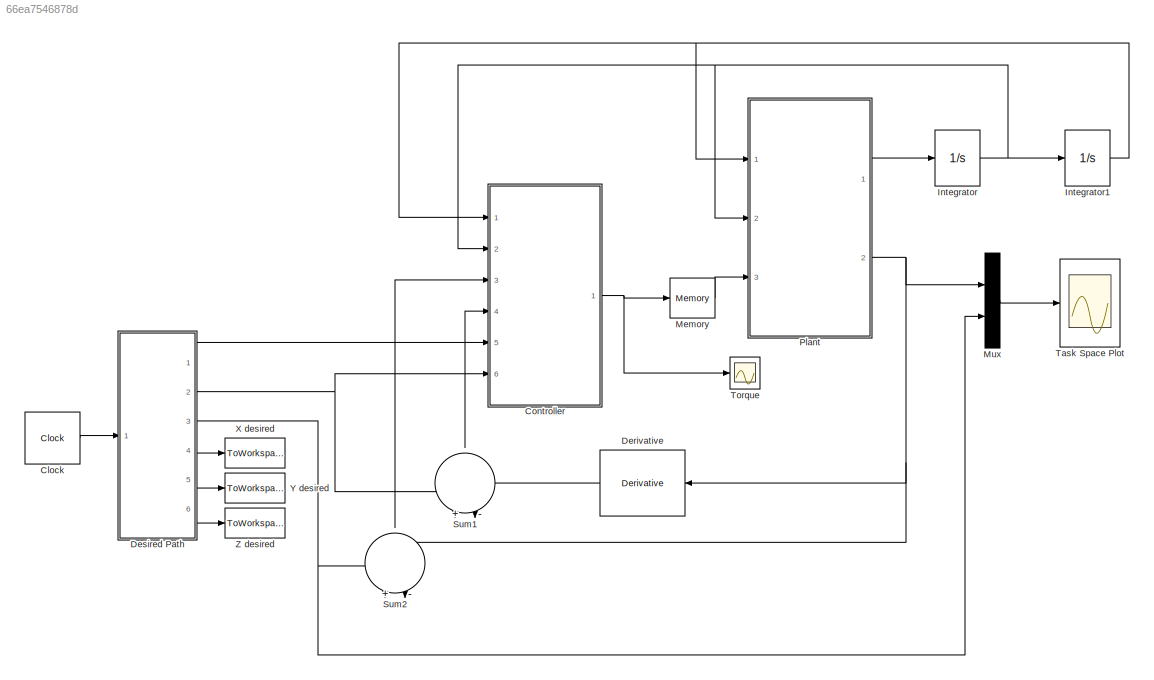
MODEL slx_66ea7546878d
KIND model
CONFIG AbsTol = auto
CONFIG FixedStep = auto
CONFIG MaxStep = 0.0001
CONFIG MinStep = auto
CONFIG RelTol = 1e-3
CONFIG SampleTimeConstraint = Unconstrained
CONFIG Solver = VariableStepAuto
CONFIG SolverMode = Auto
CONFIG SolverName = VariableStepAuto
CONFIG StartTime = 0.0
CONFIG StopTime = 20
BLOCK [Clock] Clock
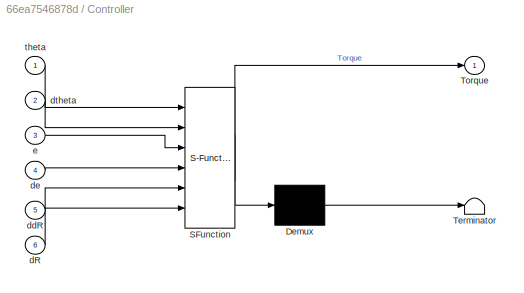
BLOCK [SubSystem] Controller
  ErrorFcn = Stateflow.Translate.translate
  PermitHierarchicalResolution = ExplicitOnly
  Ports = [6, 1]
  RequestExecContextInheritance = off
  SFBlockType = MATLAB Function
  TreatAsAtomicUnit = on
  Variant = off
BLOCK [Demux] Controller/ Demux 
  Outputs = 1
  Ports = [1, 1]
BLOCK [S-Function] Controller/ SFunction 
  EnableBusSupport = on
  FunctionName = sf_sfun
  PortCounts = [6 2]
  Ports = [6, 2]
  SFunctionDeploymentMode = off
  Tag = Stateflow S-Function Taskspace_3R_SMC 3
BLOCK [Terminator] Controller/ Terminator 
BLOCK [Outport] Controller/Torque
  IconDisplay = Port number
BLOCK [Inport] Controller/dR
  IconDisplay = Port number
  Port = 6
BLOCK [Inport] Controller/ddR
  IconDisplay = Port number
  Port = 5
BLOCK [Inport] Controller/de
  IconDisplay = Port number
  Port = 4
BLOCK [Inport] Controller/dtheta
  IconDisplay = Port number
  Port = 2
BLOCK [Inport] Controller/e
  IconDisplay = Port number
  Port = 3
BLOCK [Inport] Controller/theta
  IconDisplay = Port number
BLOCK [Derivative] Derivative
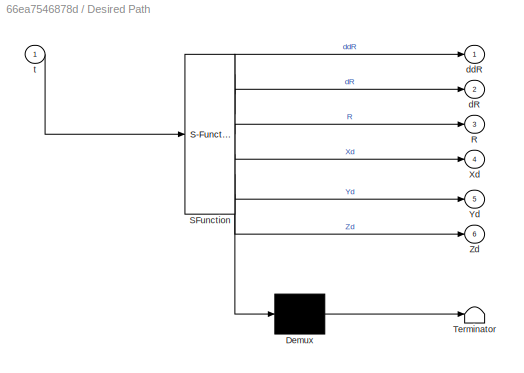
BLOCK [SubSystem] Desired Path
  ErrorFcn = Stateflow.Translate.translate
  PermitHierarchicalResolution = ExplicitOnly
  Ports = [1, 6]
  RequestExecContextInheritance = off
  SFBlockType = MATLAB Function
  TreatAsAtomicUnit = on
  Variant = off
BLOCK [Demux] Desired Path/ Demux 
  Outputs = 1
  Ports = [1, 1]
BLOCK [S-Function] Desired Path/ SFunction 
  EnableBusSupport = on
  FunctionName = sf_sfun
  PortCounts = [1 7]
  Ports = [1, 7]
  SFunctionDeploymentMode = off
  Tag = Stateflow S-Function Taskspace_3R_SMC 1
BLOCK [Terminator] Desired Path/ Terminator 
BLOCK [Outport] Desired Path/R
  IconDisplay = Port number
  Port = 3
BLOCK [Outport] Desired Path/Xd
  IconDisplay = Port number
  Port = 4
BLOCK [Outport] Desired Path/Yd
  IconDisplay = Port number
  Port = 5
BLOCK [Outport] Desired Path/Zd
  IconDisplay = Port number
  Port = 6
BLOCK [Outport] Desired Path/dR
  IconDisplay = Port number
  Port = 2
BLOCK [Outport] Desired Path/ddR
  IconDisplay = Port number
BLOCK [Inport] Desired Path/t
  IconDisplay = Port number
BLOCK [Integrator] Integrator
  InitialCondition = zeros(3,1)
  Ports = [1, 1]
BLOCK [Integrator] Integrator1
  InitialCondition = randn(3,1)
  Ports = [1, 1]
BLOCK [Memory] Memory
BLOCK [Mux] Mux
  DisplayOption = bar
  Inputs = 2
  Ports = [2, 1]
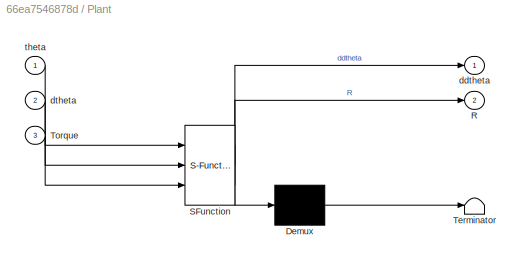
BLOCK [SubSystem] Plant
  ErrorFcn = Stateflow.Translate.translate
  PermitHierarchicalResolution = ExplicitOnly
  Ports = [3, 2]
  RequestExecContextInheritance = off
  SFBlockType = MATLAB Function
  TreatAsAtomicUnit = on
  Variant = off
BLOCK [Demux] Plant/ Demux 
  Outputs = 1
  Ports = [1, 1]
BLOCK [S-Function] Plant/ SFunction 
  EnableBusSupport = on
  FunctionName = sf_sfun
  PortCounts = [3 3]
  Ports = [3, 3]
  SFunctionDeploymentMode = off
  Tag = Stateflow S-Function Taskspace_3R_SMC 2
BLOCK [Terminator] Plant/ Terminator 
BLOCK [Outport] Plant/R
  IconDisplay = Port number
  Port = 2
BLOCK [Inport] Plant/Torque
  IconDisplay = Port number
  Port = 3
BLOCK [Outport] Plant/ddtheta
  IconDisplay = Port number
BLOCK [Inport] Plant/dtheta
  IconDisplay = Port number
  Port = 2
BLOCK [Inport] Plant/theta
  IconDisplay = Port number
BLOCK [Sum] Sum1
  IconShape = round
  InputSameDT = off
  Inputs = +|-
  OutDataTypeStr = Inherit: Inherit via internal rule
  Ports = [2, 1]
  SaturateOnIntegerOverflow = off
BLOCK [Sum] Sum2
  IconShape = round
  InputSameDT = off
  Inputs = +|-
  OutDataTypeStr = Inherit: Inherit via internal rule
  Ports = [2, 1]
  SaturateOnIntegerOverflow = off
BLOCK [Scope] Task Space Plot
  Ports = [1]
  ScopeSpecificationString = Simulink.scopes.TimeScopeBlockCfg('CurrentConfiguration', extmgr.ConfigurationSet(extmgr.Configuration('Core','General UI',true),extmgr.Configuration('Core','Source UI',true),extmgr.Configuration('Sources','WiredSimulink',true,'DataLoggingVariableName','ScopeData1'),extmgr.Configuration('Visuals','Time Domain',true,'SerializedDisplays',{struct('MinYLimReal','-4.16237','MaxYLimReal','7.12915','YLab...<+1449ch>
BLOCK [Scope] Torque
  Ports = [1]
  ScopeSpecificationString = Simulink.scopes.TimeScopeBlockCfg('CurrentConfiguration', extmgr.ConfigurationSet(extmgr.Configuration('Core','General UI',true),extmgr.Configuration('Core','Source UI',true),extmgr.Configuration('Sources','WiredSimulink',true,'DataLoggingVariableName','ScopeData1'),extmgr.Configuration('Visuals','Time Domain',true,'SerializedDisplays',{struct('MinYLimReal','-365.08925','MaxYLimReal','192.29034','...<+1441ch>
BLOCK [ToWorkspace] X desired
  FixptAsFi = on
  MaxDataPoints = inf
  Ports = [1]
  SampleTime = -1
  Save2DSignal = 3-D array (concatenate along third dimension)
  SaveFormat = Timeseries
  VariableName = Xd
BLOCK [ToWorkspace] Y desired 
  FixptAsFi = on
  MaxDataPoints = inf
  Ports = [1]
  SampleTime = -1
  Save2DSignal = 3-D array (concatenate along third dimension)
  SaveFormat = Timeseries
  VariableName = Yd
BLOCK [ToWorkspace] Z desired 
  FixptAsFi = on
  MaxDataPoints = inf
  Ports = [1]
  SampleTime = -1
  Save2DSignal = 3-D array (concatenate along third dimension)
  SaveFormat = Timeseries
  VariableName = Zd
LINE Clock:1 -> Desired Path:1
NET Controller:1 -> Memory:1, Torque:1
LINE Derivative:1 -> Sum1:2
LINE Desired Path:1 -> Controller:5
NET Desired Path:2 -> Controller:6, Sum1:1
NET Desired Path:3 -> Mux:2, Sum2:1
LINE Desired Path:4 -> X desired:1
LINE Desired Path:5 -> Y desired :1
LINE Desired Path:6 -> Z desired :1
NET Integrator1:1 -> Controller:1, Plant:1
NET Integrator:1 -> Controller:2, Integrator1:1, Plant:2
LINE Memory:1 -> Plant:3
LINE Mux:1 -> Task Space Plot:1
LINE Plant:1 -> Integrator:1
NET Plant:2 -> Derivative:1, Mux:1, Sum2:2
LINE Sum1:1 -> Controller:4
LINE Sum2:1 -> Controller:3
note: NET lines group one-source signal fan-out (src -> all destinations, sorted); 1:1 wires keep LINE
CHART Desired Path states=1 transitions=1
  STATE_LABEL 'eML_blk_kernel()'
  STATE_LABEL 'SCRIPT:\nfunction [ddR , dR , R, Xd , Yd , Zd] = fcn(t)\n\n    Xd = 2*(cos(t)+2);\n    Yd = 2*(sin(t)+1);\n    Zd = 6;\n\n    dXd = -2*sin(t);\n    dYd = 2*cos(t);\n    dZd = 0;\n\n    ddXd = -2*cos(t);\n    ddYd = -2*sin(t);\n    ddZd = 0;\n\n    R = [Xd;Yd;Zd];\n    dR = [dXd;dYd;dZd];\n    ddR = [ddXd ; ddYd ;ddZd];\n'
CHART Plant states=1 transitions=1
  STATE_LABEL 'eML_blk_kernel()'
  STATE_LABEL 'SCRIPT:\nfunction [ddtheta, R]= fcn( theta , dtheta , Torque)\n    \n    m1 = 1; %kg\n    m2 = 1 ; %kg\n    m3 = 1 ; %kg\n\n    L1 = 4 ; %m\n    L2 = 4 ; %m\n    L3 = 4 ; %m\n\n    I1x = 1/12 * m1 * L1^2 ; %kg.N\n    I2x = 1/12 * m2 * L2^2 ; %kg.N\n    I3x = 1/12 * m3 * L3^2 ; %kg.N\n    \n    I1z = 1/3 * m1 * L1^2 ; %kg.N\n    I2z = 1/3 * m2 * L2^2 ; %kg.N\n    I3z = 1/3 * m3 * L3^2 ; %kg.N\n    \n    g = 9.8; % m/...<+3608ch>'
CHART Controller states=1 transitions=1
  STATE_LABEL 'eML_blk_kernel()'
  STATE_LABEL 'SCRIPT:\nfunction Torque = fcn(theta , dtheta , e , de , ddR , dR)\n \n    \n    m1 = 1; %kg\n    m2 = 1 ; %kg\n    m3 = 1 ; %kg\n\n    L1 = 4 ; %m\n    L2 = 4 ; %m\n    L3 = 4 ; %m\n\n    I1x = 1/12 * m1 * L1^2 ; %kg.N\n    I2x = 1/12 * m2 * L2^2 ; %kg.N\n    I3x = 1/12 * m3 * L3^2 ; %kg.N\n    \n    I1z = 1/3 * m1 * L1^2 ; %kg.N\n    I2z = 1/3 * m2 * L2^2 ; %kg.N\n    I3z = 1/3 * m3 * L3^2 ; %kg.N\n    \n    g = 9....<+3608ch>'
